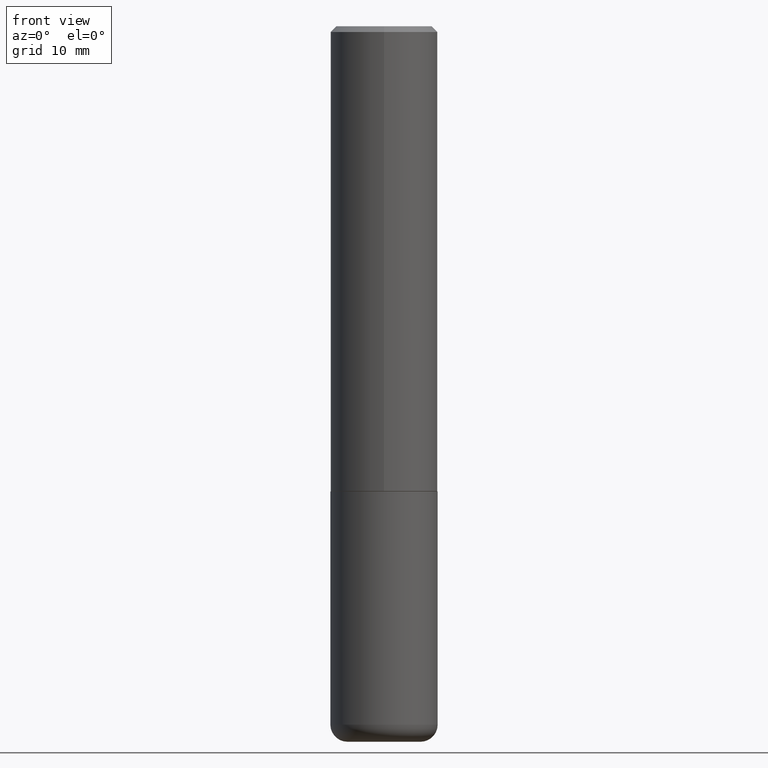
[diagram: clean part render]
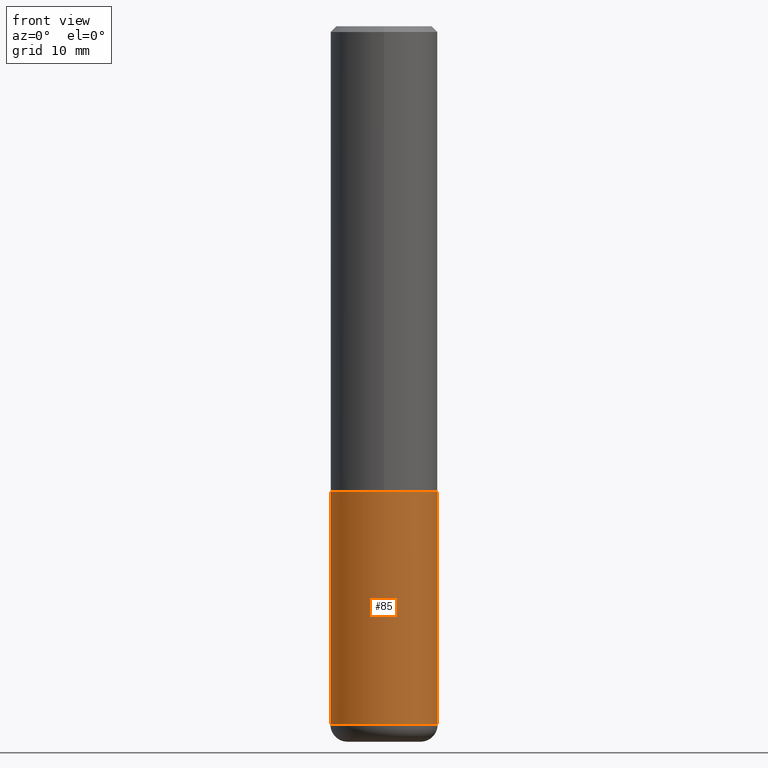
[diagram: same view with one face highlighted and labeled with its STEP entity id]
A machine part, front view. The second image highlights one B-rep face of the part: STEP entity #85.
In plain terms, the highlighted cylindrical surface (partial cylindrical patch) has radius 4.7625 mm, axis along (-0, 0, 1).
Its self-contained STEP definition (entity closure, byte-faithful):
#11 = DIRECTION ( 'NONE',  ( -2.445468806185136597E-29, 3.491481338843145583E-15, 1.000000000000000000 ) ) ;
#16 = CARTESIAN_POINT ( 'NONE',  ( -0.1875000000000001110, -7.186946837227087200E-15, -2.440000000000000391 ) ) ;
#66 = CARTESIAN_POINT ( 'NONE',  ( 3.973886810050848091E-29, -5.673657175620113002E-15, -1.625000000000000222 ) ) ;
#69 = DIRECTION ( 'NONE',  ( 1.000000000000000000, -6.982962677686266711E-15, 4.876176775795935793E-29 ) ) ;
#82 = DIRECTION ( 'NONE',  ( 1.000000000000000000, -6.982962677686263555E-15, 0.000000000000000000 ) ) ;
#85 = ADVANCED_FACE ( 'NONE', ( #172 ), #362, .T. ) ;
#103 = AXIS2_PLACEMENT_3D ( 'NONE', #237, #11, #82 ) ;
#106 = CARTESIAN_POINT ( 'NONE',  ( -0.1874999999999999722, 1.332267629550187651E-15, -9.223003294227946589E-30 ) ) ;
#107 = DIRECTION ( 'NONE',  ( -2.445468806185136597E-29, 3.491481338843145583E-15, 1.000000000000000000 ) ) ;
#136 = CIRCLE ( 'NONE', #103, 0.1874999999999999722 ) ;
#143 = CARTESIAN_POINT ( 'NONE',  ( 0.000000000000000000, 0.000000000000000000, 0.000000000000000000 ) ) ;
#144 = LINE ( 'NONE', #267, #231 ) ;
#164 = CARTESIAN_POINT ( 'NONE',  ( 0.1875000000000001110, -9.828519968843450056E-15, -2.440000000000000391 ) ) ;
#168 = VERTEX_POINT ( 'NONE', #310 ) ;
#172 = FACE_OUTER_BOUND ( 'NONE', #248, .T. ) ;
#189 = ORIENTED_EDGE ( 'NONE', *, *, #213, .F. ) ;
#195 = DIRECTION ( 'NONE',  ( 1.000000000000000000, -6.982962677686266711E-15, 0.000000000000000000 ) ) ;
#213 = EDGE_CURVE ( 'NONE', #168, #218, #332, .T. ) ;
#218 = VERTEX_POINT ( 'NONE', #222 ) ;
#222 = CARTESIAN_POINT ( 'NONE',  ( 0.1875000000000000278, -6.982962677686288010E-15, -1.625000000000000222 ) ) ;
#231 = VECTOR ( 'NONE', #399, 39.37007874015748143 ) ;
#237 = CARTESIAN_POINT ( 'NONE',  ( 5.966943887091733341E-29, -8.519214466777275048E-15, -2.440000000000000391 ) ) ;
#248 = EDGE_LOOP ( 'NONE', ( #368, #400, #309, #189 ) ) ;
#259 = VERTEX_POINT ( 'NONE', #16 ) ;
#267 = CARTESIAN_POINT ( 'NONE',  ( 0.1874999999999999722, -1.309305502066174811E-15, 9.142831454617378210E-30 ) ) ;
#268 = DIRECTION ( 'NONE',  ( -2.445468806185136877E-29, 3.491481338843145188E-15, 1.000000000000000000 ) ) ;
#277 = EDGE_CURVE ( 'NONE', #259, #348, #136, .T. ) ;
#285 = EDGE_CURVE ( 'NONE', #348, #218, #144, .T. ) ;
#301 = AXIS2_PLACEMENT_3D ( 'NONE', #143, #107, #69 ) ;
#309 = ORIENTED_EDGE ( 'NONE', *, *, #285, .T. ) ;
#310 = CARTESIAN_POINT ( 'NONE',  ( -0.1875000000000000278, -5.764168191648507360E-15, -1.625000000000000222 ) ) ;
#321 = AXIS2_PLACEMENT_3D ( 'NONE', #66, #324, #195 ) ;
#324 = DIRECTION ( 'NONE',  ( -2.445468806185136597E-29, 3.491481338843145583E-15, 1.000000000000000000 ) ) ;
#332 = CIRCLE ( 'NONE', #321, 0.1875000000000000278 ) ;
#335 = LINE ( 'NONE', #106, #401 ) ;
#348 = VERTEX_POINT ( 'NONE', #164 ) ;
#362 = CYLINDRICAL_SURFACE ( 'NONE', #301, 0.1874999999999999722 ) ;
#368 = ORIENTED_EDGE ( 'NONE', *, *, #411, .F. ) ;
#399 = DIRECTION ( 'NONE',  ( -2.445468806185136877E-29, 3.491481338843145188E-15, 1.000000000000000000 ) ) ;
#400 = ORIENTED_EDGE ( 'NONE', *, *, #277, .T. ) ;
#401 = VECTOR ( 'NONE', #268, 39.37007874015748143 ) ;
#411 = EDGE_CURVE ( 'NONE', #259, #168, #335, .T. ) ;